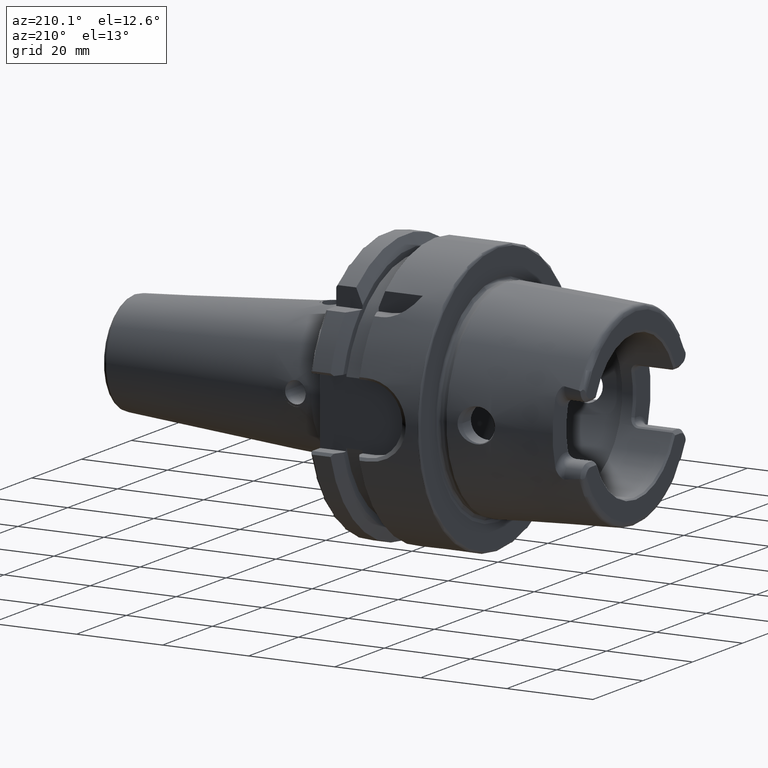
[diagram: clean part render]
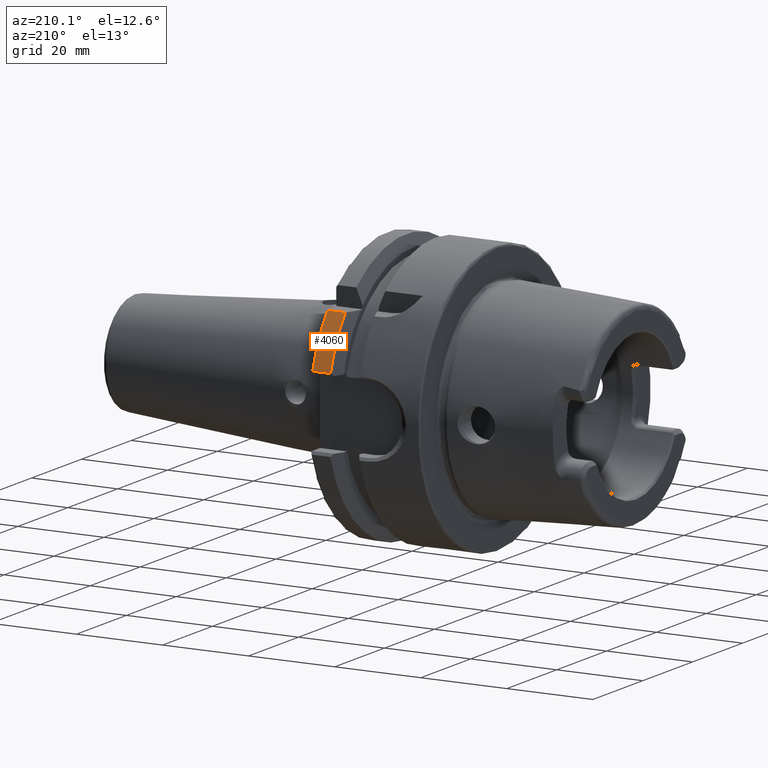
[diagram: same view with one face highlighted and labeled with its STEP entity id]
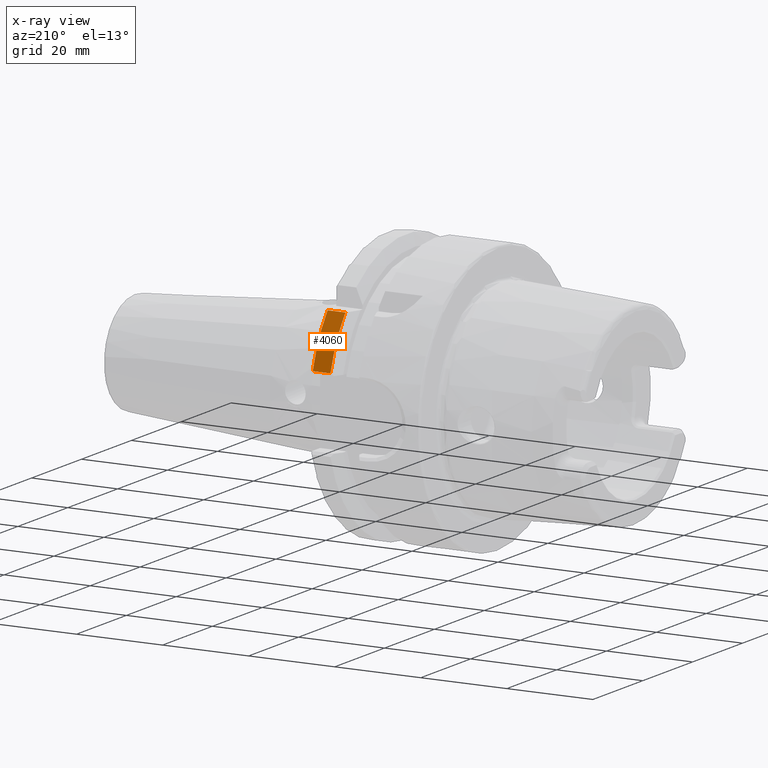
[diagram: x-ray of the same camera — body ghosted, the highlighted face saturated]
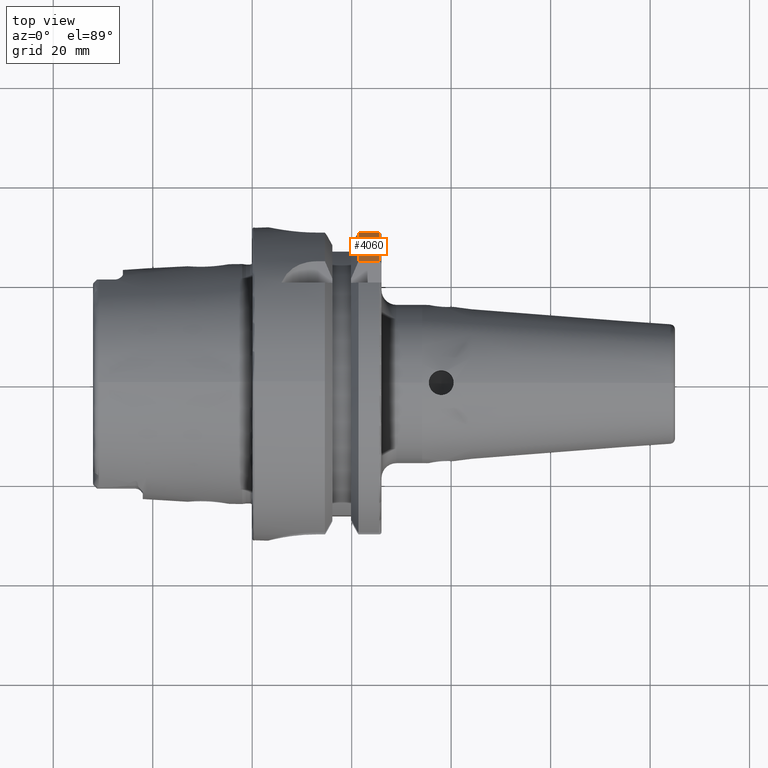
[diagram: same view with one face highlighted and labeled with its STEP entity id]
A machine part, auxiliary view. The second image highlights one B-rep face of the part: STEP entity #4060.
The next image is the same camera in x-ray: the body ghosted, the highlighted face saturated — about 0% of this face is hidden behind the body in this view.
A second angle (top view) of the same face is appended — the face is thin or edge-on in the first view.
In plain terms, the highlighted cylindrical surface (partial cylindrical patch) has radius 31.5 mm, axis along (1, 0, 0).
Its self-contained STEP definition (entity closure, byte-faithful):
#855=DIRECTION('',(1.E0,0.E0,0.E0));
#856=VECTOR('',#855,4.122500945915E0);
#857=CARTESIAN_POINT('',(2.137749905409E1,2.433618704728E1,2.E1));
#858=LINE('',#857,#856);
#859=DIRECTION('',(1.E0,0.E0,0.E0));
#860=VECTOR('',#859,4.122500945915E0);
#861=CARTESIAN_POINT('',(2.137749905409E1,3.030257052423E1,8.602570524226E0));
#862=LINE('',#861,#860);
#2255=CARTESIAN_POINT('',(2.137749905409E1,3.030257052423E1,8.602570524226E0));
#2257=CARTESIAN_POINT('',(2.137749905409E1,0.E0,0.E0));
#2258=DIRECTION('',(1.E0,0.E0,0.E0));
#2259=DIRECTION('',(0.E0,9.619863658485E-1,2.730974769596E-1));
#2260=AXIS2_PLACEMENT_3D('',#2257,#2258,#2259);
#2262=CARTESIAN_POINT('',(2.137749905409E1,2.433618704728E1,2.E1));
#2400=CARTESIAN_POINT('',(2.55E1,3.030257052423E1,8.602570524226E0));
#2421=CARTESIAN_POINT('',(2.55E1,0.E0,0.E0));
#2422=DIRECTION('',(-1.E0,0.E0,0.E0));
#2423=DIRECTION('',(0.E0,7.725773665802E-1,6.349206349206E-1));
#2424=AXIS2_PLACEMENT_3D('',#2421,#2422,#2423);
#2438=CARTESIAN_POINT('',(2.55E1,2.433618704728E1,2.E1));
#2862=VERTEX_POINT('',#2262);
#3073=VERTEX_POINT('',#2255);
#3097=VERTEX_POINT('',#2400);
#3100=VERTEX_POINT('',#2438);
#4045=CARTESIAN_POINT('',(0.E0,0.E0,0.E0));
#4046=DIRECTION('',(1.E0,0.E0,0.E0));
#4047=DIRECTION('',(0.E0,0.E0,1.E0));
#4048=AXIS2_PLACEMENT_3D('',#4045,#4046,#4047);
#4049=CYLINDRICAL_SURFACE('',#4048,3.15E1);
#4051=ORIENTED_EDGE('',*,*,#4050,.F.);
#4053=ORIENTED_EDGE('',*,*,#4052,.F.);
#4055=ORIENTED_EDGE('',*,*,#4054,.F.);
#4057=ORIENTED_EDGE('',*,*,#4056,.T.);
#4058=EDGE_LOOP('',(#4051,#4053,#4055,#4057));
#4059=FACE_OUTER_BOUND('',#4058,.F.);
#4060=ADVANCED_FACE('',(#4059),#4049,.T.);
#2261=CIRCLE('',#2260,3.15E1);
#2425=CIRCLE('',#2424,3.15E1);
#4050=EDGE_CURVE('',#3100,#3097,#2425,.T.);
#4052=EDGE_CURVE('',#2862,#3100,#858,.T.);
#4054=EDGE_CURVE('',#3073,#2862,#2261,.T.);
#4056=EDGE_CURVE('',#3073,#3097,#862,.T.);